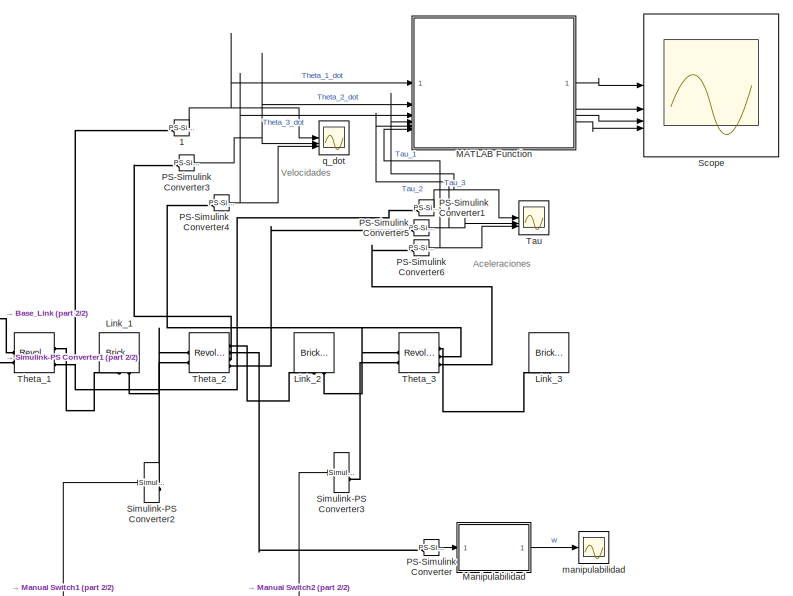
[diagram: root canvas - part 1/2, middle right region]
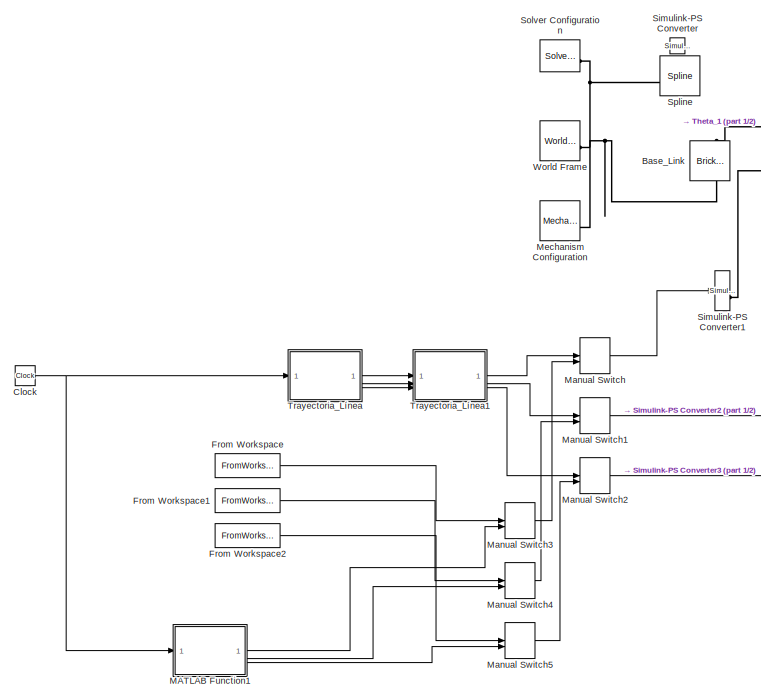
[diagram: root canvas - part 2/2, left side, full height]
MODEL slx_5a212d0f6525
KIND model
CONFIG AbsTol = 1e-3
CONFIG EnableMultiTasking = on
CONFIG FixedStep = 0.001
CONFIG MaxStep = auto
CONFIG MinStep = auto
CONFIG RelTol = 1e-3
CONFIG SampleTimeConstraint = Unconstrained
CONFIG SolverName = FixedStepAuto
CONFIG StartTime = 0.0
CONFIG StopTime = 10.0
BLOCK [Reference] 1  REF=nesl_utility/PS-Simulink
Converter
  SourceBlock = nesl_utility/PS-Simulink\nConverter
  SourceType = PS-Simulink\nConverter
BLOCK [Reference] Base_Link  REF=sm_lib/Body Elements/Brick Solid
  SourceBlock = sm_lib/Body Elements/Brick Solid
  SourceType = Brick Solid
BLOCK [Clock] Clock
BLOCK [FromWorkspace] From Workspace
  VariableName = signal_theta1c
BLOCK [FromWorkspace] From Workspace1
  VariableName = signal_theta2c
BLOCK [FromWorkspace] From Workspace2
  VariableName = signal_theta3c
BLOCK [Reference] Link_1  REF=sm_lib/Body Elements/Brick Solid
  SourceBlock = sm_lib/Body Elements/Brick Solid
  SourceType = Brick Solid
BLOCK [Reference] Link_2  REF=sm_lib/Body Elements/Brick Solid
  SourceBlock = sm_lib/Body Elements/Brick Solid
  SourceType = Brick Solid
BLOCK [Reference] Link_3  REF=sm_lib/Body Elements/Brick Solid
  SourceBlock = sm_lib/Body Elements/Brick Solid
  SourceType = Brick Solid
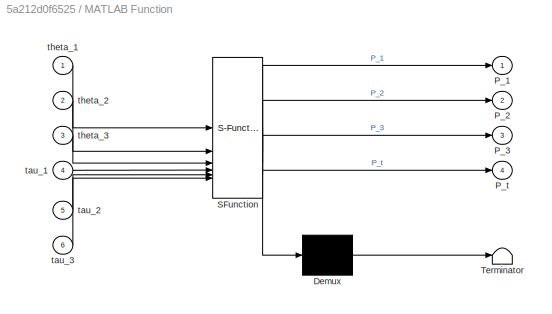
BLOCK [SubSystem] MATLAB Function
  ErrorFcn = Stateflow.Translate.translate
  PermitHierarchicalResolution = ExplicitOnly
  SFBlockType = MATLAB Function
  TreatAsAtomicUnit = on
BLOCK [Demux] MATLAB Function/ Demux 
  Outputs = 1
BLOCK [S-Function] MATLAB Function/ SFunction 
  EnableBusSupport = on
  FunctionName = sf_sfun
  PortCounts = [6 5]
  SFcnIsStateOwnerBlock = off
  SFunctionDeploymentMode = off
  Tag = Stateflow S-Function 4
BLOCK [Terminator] MATLAB Function/ Terminator 
BLOCK [Outport] MATLAB Function/P_1
BLOCK [Outport] MATLAB Function/P_2
  Port = 2
BLOCK [Outport] MATLAB Function/P_3
  Port = 3
BLOCK [Outport] MATLAB Function/P_t
  Port = 4
BLOCK [Inport] MATLAB Function/tau_1
  Port = 4
BLOCK [Inport] MATLAB Function/tau_2
  Port = 5
BLOCK [Inport] MATLAB Function/tau_3
  Port = 6
BLOCK [Inport] MATLAB Function/theta_1
BLOCK [Inport] MATLAB Function/theta_2
  Port = 2
BLOCK [Inport] MATLAB Function/theta_3
  Port = 3
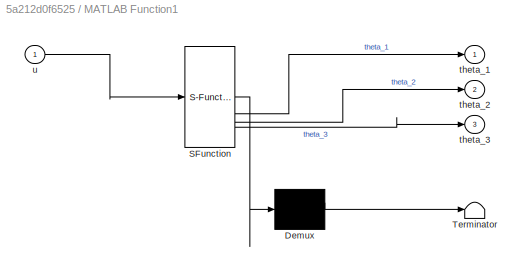
BLOCK [SubSystem] MATLAB Function1
  ErrorFcn = Stateflow.Translate.translate
  PermitHierarchicalResolution = ExplicitOnly
  SFBlockType = MATLAB Function
  TreatAsAtomicUnit = on
BLOCK [Demux] MATLAB Function1/ Demux 
  Outputs = 1
BLOCK [S-Function] MATLAB Function1/ SFunction 
  EnableBusSupport = on
  FunctionName = sf_sfun
  PortCounts = [1 4]
  SFcnIsStateOwnerBlock = off
  SFunctionDeploymentMode = off
  Tag = Stateflow S-Function 5
BLOCK [Terminator] MATLAB Function1/ Terminator 
BLOCK [Outport] MATLAB Function1/theta_1
BLOCK [Outport] MATLAB Function1/theta_2
  Port = 2
BLOCK [Outport] MATLAB Function1/theta_3
  Port = 3
BLOCK [Inport] MATLAB Function1/u
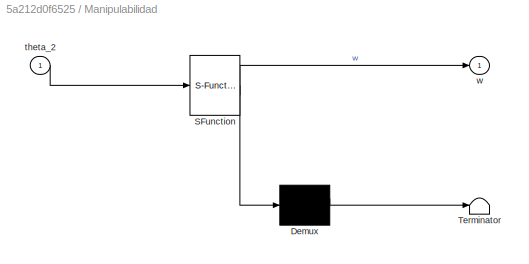
BLOCK [SubSystem] Manipulabilidad
  ErrorFcn = Stateflow.Translate.translate
  PermitHierarchicalResolution = ExplicitOnly
  SFBlockType = MATLAB Function
  TreatAsAtomicUnit = on
BLOCK [Demux] Manipulabilidad/ Demux 
  Outputs = 1
BLOCK [S-Function] Manipulabilidad/ SFunction 
  EnableBusSupport = on
  FunctionName = sf_sfun
  PortCounts = [1 2]
  SFcnIsStateOwnerBlock = off
  SFunctionDeploymentMode = off
  Tag = Stateflow S-Function 3
BLOCK [Terminator] Manipulabilidad/ Terminator 
BLOCK [Inport] Manipulabilidad/theta_2
BLOCK [Outport] Manipulabilidad/w
BLOCK [ManualSwitch] Manual Switch
BLOCK [ManualSwitch] Manual Switch1
BLOCK [ManualSwitch] Manual Switch2
BLOCK [ManualSwitch] Manual Switch3
BLOCK [ManualSwitch] Manual Switch4
BLOCK [ManualSwitch] Manual Switch5
BLOCK [Reference] Mechanism Configuration  REF=sm_lib/Utilities/Mechanism
Configuration
  SourceBlock = sm_lib/Utilities/Mechanism\nConfiguration
  SourceType = Mechanism\nConfiguration
BLOCK [Reference] PS-Simulink Converter  REF=nesl_utility/PS-Simulink
Converter
  SourceBlock = nesl_utility/PS-Simulink\nConverter
  SourceType = PS-Simulink\nConverter
BLOCK [Reference] PS-Simulink Converter1  REF=nesl_utility/PS-Simulink
Converter
  SourceBlock = nesl_utility/PS-Simulink\nConverter
  SourceType = PS-Simulink\nConverter
BLOCK [Reference] PS-Simulink Converter3  REF=nesl_utility/PS-Simulink
Converter
  SourceBlock = nesl_utility/PS-Simulink\nConverter
  SourceType = PS-Simulink\nConverter
BLOCK [Reference] PS-Simulink Converter4  REF=nesl_utility/PS-Simulink
Converter
  SourceBlock = nesl_utility/PS-Simulink\nConverter
  SourceType = PS-Simulink\nConverter
BLOCK [Reference] PS-Simulink Converter5  REF=nesl_utility/PS-Simulink
Converter
  SourceBlock = nesl_utility/PS-Simulink\nConverter
  SourceType = PS-Simulink\nConverter
BLOCK [Reference] PS-Simulink Converter6  REF=nesl_utility/PS-Simulink
Converter
  SourceBlock = nesl_utility/PS-Simulink\nConverter
  SourceType = PS-Simulink\nConverter
BLOCK [Scope] Scope
  Floating = off
  NumInputPorts = 4
  ScopeSpecificationString = Simulink.scopes.TimeScopeBlockCfg('CurrentConfiguration', extmgr.ConfigurationSet(extmgr.Configuration('Core','General UI',true),extmgr.Configuration('Core','Source UI',true),extmgr.Configuration('Sources','WiredSimulink',true,'DataLoggingVariableName','ScopeData3'),extmgr.Configuration('Visuals','Time Domain',true,'SerializedDisplays',{struct('MinYLimReal','-74902.82525','MaxYLimReal','674125.427...<+1478ch>
BLOCK [Reference] Simulink-PS Converter  REF=nesl_utility/Simulink-PS
Converter
  SourceBlock = nesl_utility/Simulink-PS\nConverter
  SourceType = Simulink-PS\nConverter
BLOCK [Reference] Simulink-PS Converter1  REF=nesl_utility/Simulink-PS
Converter
  SourceBlock = nesl_utility/Simulink-PS\nConverter
  SourceType = Simulink-PS\nConverter
BLOCK [Reference] Simulink-PS Converter2  REF=nesl_utility/Simulink-PS
Converter
  SourceBlock = nesl_utility/Simulink-PS\nConverter
  SourceType = Simulink-PS\nConverter
BLOCK [Reference] Simulink-PS Converter3  REF=nesl_utility/Simulink-PS
Converter
  SourceBlock = nesl_utility/Simulink-PS\nConverter
  SourceType = Simulink-PS\nConverter
BLOCK [Reference] Solver Configuration  REF=nesl_utility/Solver
Configuration
  SourceBlock = nesl_utility/Solver\nConfiguration
  SourceType = Solver\nConfiguration
BLOCK [Reference] Spline  REF=sm_lib/Curves and Surfaces/Spline
  SourceBlock = sm_lib/Curves and Surfaces/Spline
  SourceType = Spline
BLOCK [Scope] Tau
  Floating = off
  NumInputPorts = 3
  ScopeSpecificationString = Simulink.scopes.TimeScopeBlockCfg('CurrentConfiguration', extmgr.ConfigurationSet(extmgr.Configuration('Core','General UI',true),extmgr.Configuration('Core','Source UI',true),extmgr.Configuration('Sources','WiredSimulink',true,'DataLoggingVariableName','ScopeData1'),extmgr.Configuration('Visuals','Time Domain',true,'SerializedDisplays',{struct('MinYLimReal','-825717.01293','MaxYLimReal','1024812.5...<+1449ch>
BLOCK [Reference] Theta_1  REF=sm_lib/Joints/Revolute Joint
  SourceBlock = sm_lib/Joints/Revolute Joint
  SourceType = Revolute Joint
BLOCK [Reference] Theta_2  REF=sm_lib/Joints/Revolute Joint
  SourceBlock = sm_lib/Joints/Revolute Joint
  SourceType = Revolute Joint
BLOCK [Reference] Theta_3  REF=sm_lib/Joints/Revolute Joint
  SourceBlock = sm_lib/Joints/Revolute Joint
  SourceType = Revolute Joint
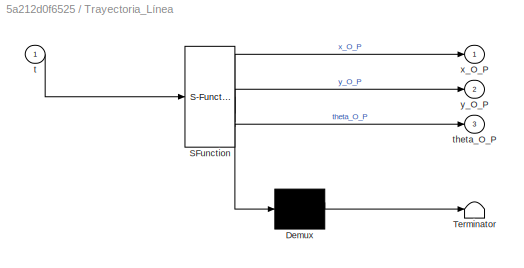
BLOCK [SubSystem] Trayectoria_Línea
  ErrorFcn = Stateflow.Translate.translate
  PermitHierarchicalResolution = ExplicitOnly
  SFBlockType = MATLAB Function
  TreatAsAtomicUnit = on
BLOCK [Demux] Trayectoria_Línea/ Demux 
  Outputs = 1
BLOCK [S-Function] Trayectoria_Línea/ SFunction 
  EnableBusSupport = on
  FunctionName = sf_sfun
  PortCounts = [1 4]
  SFcnIsStateOwnerBlock = off
  SFunctionDeploymentMode = off
  Tag = Stateflow S-Function 2
BLOCK [Terminator] Trayectoria_Línea/ Terminator 
BLOCK [Inport] Trayectoria_Línea/t
BLOCK [Outport] Trayectoria_Línea/theta_O_P
  Port = 3
BLOCK [Outport] Trayectoria_Línea/x_O_P
BLOCK [Outport] Trayectoria_Línea/y_O_P
  Port = 2
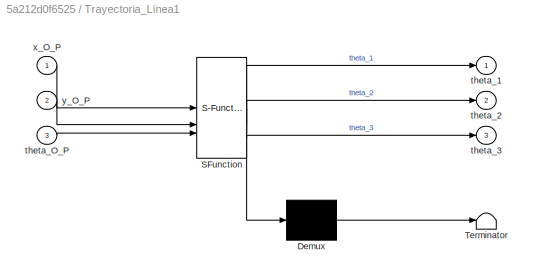
BLOCK [SubSystem] Trayectoria_Línea1
  ErrorFcn = Stateflow.Translate.translate
  PermitHierarchicalResolution = ExplicitOnly
  SFBlockType = MATLAB Function
  TreatAsAtomicUnit = on
BLOCK [Demux] Trayectoria_Línea1/ Demux 
  Outputs = 1
BLOCK [S-Function] Trayectoria_Línea1/ SFunction 
  EnableBusSupport = on
  FunctionName = sf_sfun
  PortCounts = [3 4]
  SFcnIsStateOwnerBlock = off
  SFunctionDeploymentMode = off
  Tag = Stateflow S-Function 1
BLOCK [Terminator] Trayectoria_Línea1/ Terminator 
BLOCK [Outport] Trayectoria_Línea1/theta_1
BLOCK [Outport] Trayectoria_Línea1/theta_2
  Port = 2
BLOCK [Outport] Trayectoria_Línea1/theta_3
  Port = 3
BLOCK [Inport] Trayectoria_Línea1/theta_O_P
  Port = 3
BLOCK [Inport] Trayectoria_Línea1/x_O_P
BLOCK [Inport] Trayectoria_Línea1/y_O_P
  Port = 2
BLOCK [Reference] World Frame  REF=sm_lib/Frames and
Transforms/World Frame
  SourceBlock = sm_lib/Frames and\nTransforms/World Frame
  SourceType = World Frame
BLOCK [Scope] manipulabilidad
  Floating = off
  NumInputPorts = 1
  ScopeSpecificationString = Simulink.scopes.TimeScopeBlockCfg('CurrentConfiguration', extmgr.ConfigurationSet(extmgr.Configuration('Core','General UI',true),extmgr.Configuration('Core','Source UI',true),extmgr.Configuration('Sources','WiredSimulink',true,'DataLoggingVariableName','ScopeData2'),extmgr.Configuration('Visuals','Time Domain',true,'SerializedDisplays',{struct('MinYLimReal','0.0055','MaxYLimReal','0.99997','YLabel...<+1387ch>
BLOCK [Scope] q_dot
  Floating = off
  NumInputPorts = 3
  ScopeSpecificationString = Simulink.scopes.TimeScopeBlockCfg('CurrentConfiguration', extmgr.ConfigurationSet(extmgr.Configuration('Core','General UI',true),extmgr.Configuration('Core','Source UI',true),extmgr.Configuration('Sources','WiredSimulink',true),extmgr.Configuration('Visuals','Time Domain',true,'SerializedDisplays',{struct('MinYLimReal','-2.86222','MaxYLimReal','2.95984','YLabelReal','','MinYLimMag','0.00000','MaxY...<+1425ch>
ANNOTATION (root): Aceleraciones
ANNOTATION (root): Velocidades
NET 1:1 -> MATLAB Function:1, q_dot:1
NET Clock:1 -> MATLAB Function1:1, Trayectoria_Línea:1
LINE From Workspace1:1 -> Manual Switch4:1
LINE From Workspace2:1 -> Manual Switch5:1
LINE From Workspace:1 -> Manual Switch3:1
LINE MATLAB Function1:1 -> Manual Switch3:2
LINE MATLAB Function1:2 -> Manual Switch4:2
LINE MATLAB Function1:3 -> Manual Switch5:2
LINE MATLAB Function:1 -> Scope:1
LINE MATLAB Function:2 -> Scope:2
LINE MATLAB Function:3 -> Scope:3
LINE MATLAB Function:4 -> Scope:4
LINE Manipulabilidad:1 -> manipulabilidad:1
LINE Manual Switch1:1 -> Simulink-PS Converter2:1
LINE Manual Switch2:1 -> Simulink-PS Converter3:1
LINE Manual Switch3:1 -> Manual Switch:2
LINE Manual Switch4:1 -> Manual Switch1:2
LINE Manual Switch5:1 -> Manual Switch2:2
LINE Manual Switch:1 -> Simulink-PS Converter1:1
NET PS-Simulink Converter1:1 -> MATLAB Function:4, Tau:1
NET PS-Simulink Converter3:1 -> MATLAB Function:2, q_dot:2
NET PS-Simulink Converter4:1 -> MATLAB Function:3, q_dot:3
NET PS-Simulink Converter5:1 -> MATLAB Function:5, Tau:2
NET PS-Simulink Converter6:1 -> MATLAB Function:6, Tau:3
LINE PS-Simulink Converter:1 -> Manipulabilidad:1
LINE Trayectoria_Línea1:1 -> Manual Switch:1
LINE Trayectoria_Línea1:2 -> Manual Switch1:1
LINE Trayectoria_Línea1:3 -> Manual Switch2:1
LINE Trayectoria_Línea:1 -> Trayectoria_Línea1:1
LINE Trayectoria_Línea:2 -> Trayectoria_Línea1:2
LINE Trayectoria_Línea:3 -> Trayectoria_Línea1:3
PLINE 1:LConn1 -- Theta_1:RConn2
PNET net1: Base_Link:LConn1 -- Mechanism Configuration:RConn1 -- Solver Configuration:RConn1 -- Spline:LConn1 -- World Frame:RConn1
PLINE Base_Link:RConn1 -- Theta_1:LConn1
PLINE Link_1:LConn1 -- Theta_1:RConn1
PLINE Link_1:LConn2 -- Theta_2:LConn1
PLINE Link_2:LConn1 -- Theta_2:RConn1
PLINE Link_2:LConn2 -- Theta_3:LConn1
PLINE Link_3:LConn1 -- Theta_3:RConn1
PLINE PS-Simulink Converter1:LConn1 -- Theta_1:RConn3
PLINE PS-Simulink Converter3:LConn1 -- Theta_2:RConn3
PLINE PS-Simulink Converter4:LConn1 -- Theta_3:RConn2
PLINE PS-Simulink Converter5:LConn1 -- Theta_2:RConn4
PLINE PS-Simulink Converter6:LConn1 -- Theta_3:RConn3
PLINE PS-Simulink Converter:LConn1 -- Theta_2:RConn2
PLINE Simulink-PS Converter1:RConn1 -- Theta_1:LConn2
PLINE Simulink-PS Converter2:RConn1 -- Theta_2:LConn2
PLINE Simulink-PS Converter3:RConn1 -- Theta_3:LConn2
note: NET lines group one-source signal fan-out (src -> all destinations, sorted); 1:1 wires keep LINE; PNET lines group multi-terminal physical nets as a canonical sorted terminal list (undirected conserving connections); 2-terminal nets keep the pairwise PLINE form
CHART Trayectoria_Línea1 states=1 transitions=1
  STATE_LABEL 'eML_blk_kernel()'
  STATE_LABEL 'SCRIPT:\n\nfunction [theta_1,theta_2,theta_3] = fcn(x_O_P,y_O_P,theta_O_P)\n\n%Parametros para el calculo de la solucion\n\nx_O_1 = 0.0; %m\ny_O_1 = 0.1; %m\n\n%Parametros del robot\n\nL_1 = 0.5; %m\nL_2 = 0.5; %m\nL_3 = 0.25; %m\n\n%Calculo de la posición del sistema 3 con respecto al sistema O\n\nx_O_3 = x_O_P - L_3*cos(theta_O_P);\ny_O_3 = y_O_P - L_3*sin(theta_O_P);\n\n%Calculo de la posición del sistema 3 con re...<+456ch>'
CHART Trayectoria_Línea states=1 transitions=1
  STATE_LABEL 'eML_blk_kernel()'
  STATE_LABEL 'SCRIPT:\nfunction [x_O_P,y_O_P,theta_O_P] = fcn(t)\n\n%Parametros del lugar geométrico\nx_O_P_in = 0.3;         %m\ny_O_P_in = 0.3;\ntheta_O_P_in = 0;       %rad\n\nx_O_P_fin = 0.3;        %m\ny_O_P_fin = -0.3;\ntheta_O_P_fin = pi/6;   %rad\n\n%Parametro del tiempo\nt_total= 10;            %s\n\n\n\nx_O_P = x_O_P_in+((10/t_total^3)*t^3-(15/t_total^4)*t^4+(6/t_total^5)*t^5)*(x_O_P_fin-x_O_P_in);\n\ny_O_P= y_O_P_in+((...<+193ch>'
CHART Manipulabilidad states=1 transitions=1
  STATE_LABEL 'eML_blk_kernel()'
  STATE_LABEL 'SCRIPT:\nfunction w = fcn(theta_2)\n\nL1=0.5;\nL2=0.5;\n\n\nw=L1*L2*sin(theta_2)/(L1*L2)'
CHART MATLAB Function states=1 transitions=1
  STATE_LABEL 'eML_blk_kernel()'
  STATE_LABEL 'SCRIPT:\nfunction [P_1, P_2, P_3, P_t] = fcn(theta_1,theta_2,theta_3,tau_1,tau_2,tau_3)\n\nP_1=abs(theta_1*tau_1);\nP_2=abs(theta_2*tau_2);\nP_3=abs(theta_3*tau_3);\nP_t=P_1 + P_2 + P_3;'
CHART MATLAB Function1 states=1 transitions=1
  STATE_LABEL 'eML_blk_kernel()'
  STATE_LABEL 'SCRIPT:\nfunction [theta_1,theta_2,theta_3] = fcn(u)\n\nt_total=10; %s\n\ntheta_1_in= 2.6890; %rad\ntheta_2_in= -2.723 ;%rad\ntheta_3_in= 0.0373 ;%rad\n\n\ntheta_1_fin= -0.4028; %rad\ntheta_2_fin= -2.0206;%rad\ntheta_3_fin= 2.9470;%rad\n\ntheta_1= theta_1_in+((10/t_total^3)*t^3-(15/t_total^4)*t^4+(6/t_total^5)*t^5)*(theta_1_in-theta_1_fin);\ntheta_2= theta_2_in+((10/t_total^3)*t^3-(15/t_total^4)*t^4+(6/t_total^5...<+152ch>'
CHART  states=0 transitions=0
CHART  states=0 transitions=0
CHART  states=0 transitions=0
CHART  states=0 transitions=0
CHART  states=0 transitions=0
